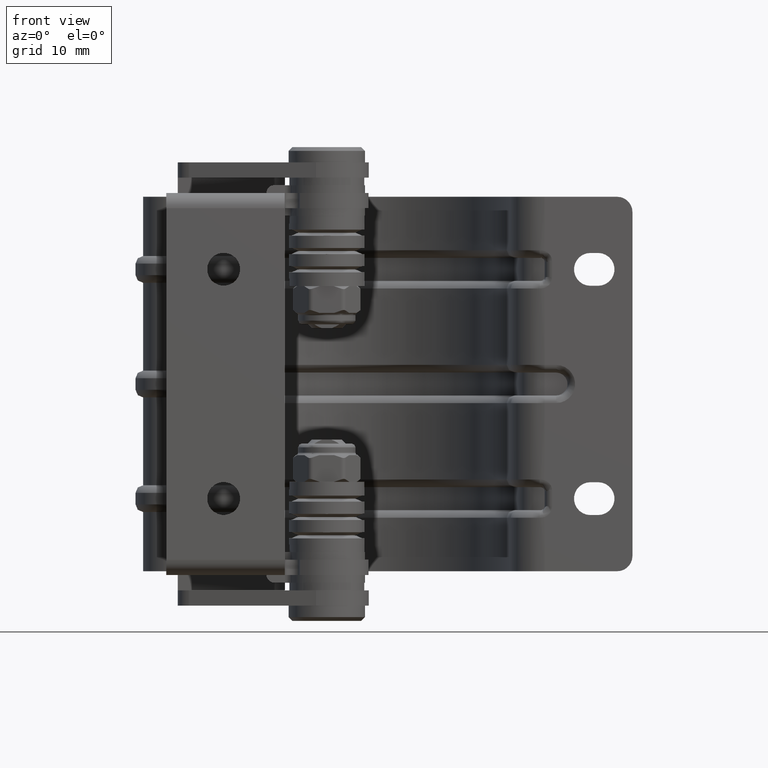
[diagram: clean part render]
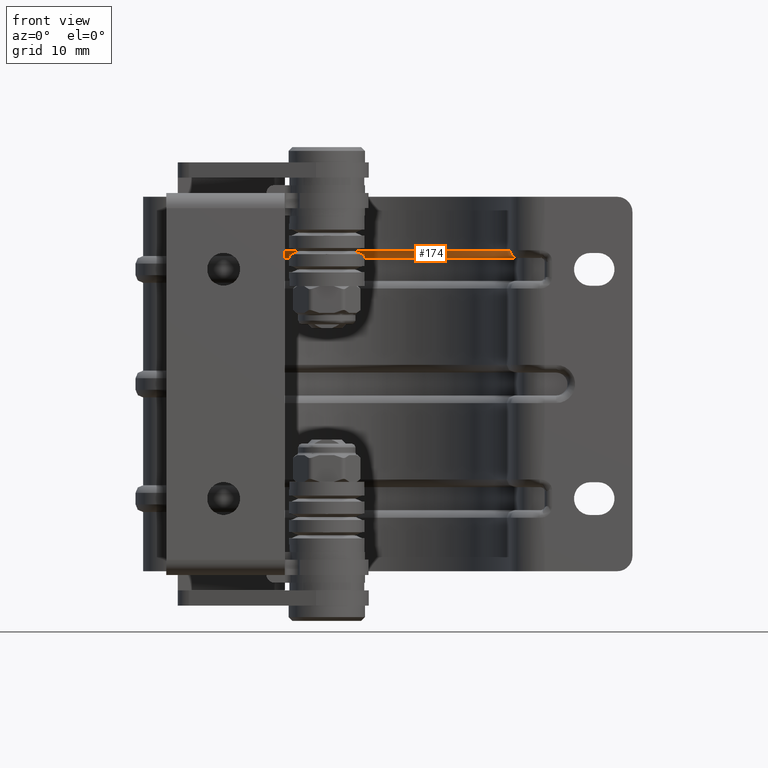
[diagram: same view with one face highlighted and labeled with its STEP entity id]
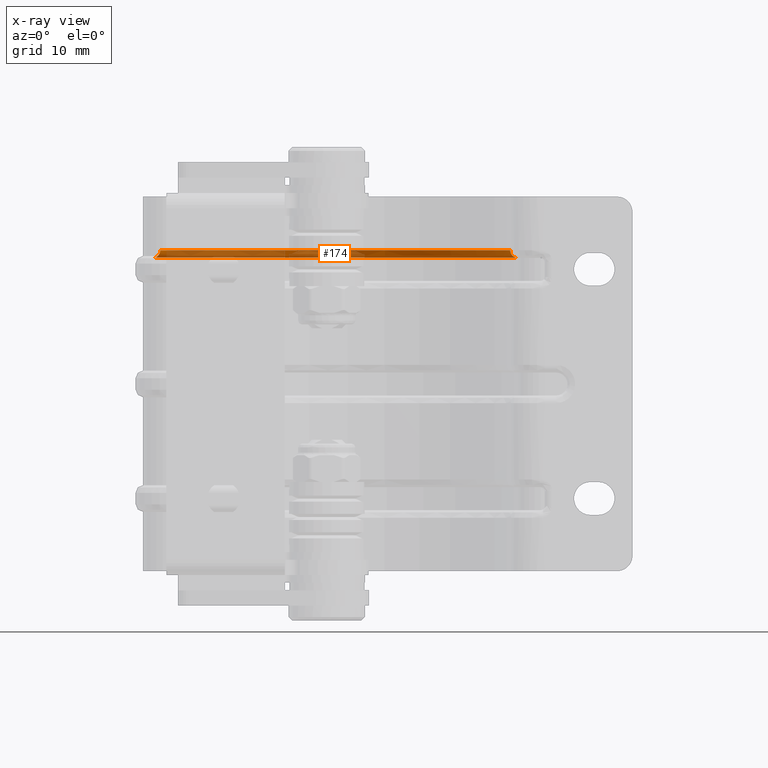
[diagram: x-ray of the same camera — body ghosted, the highlighted face saturated]
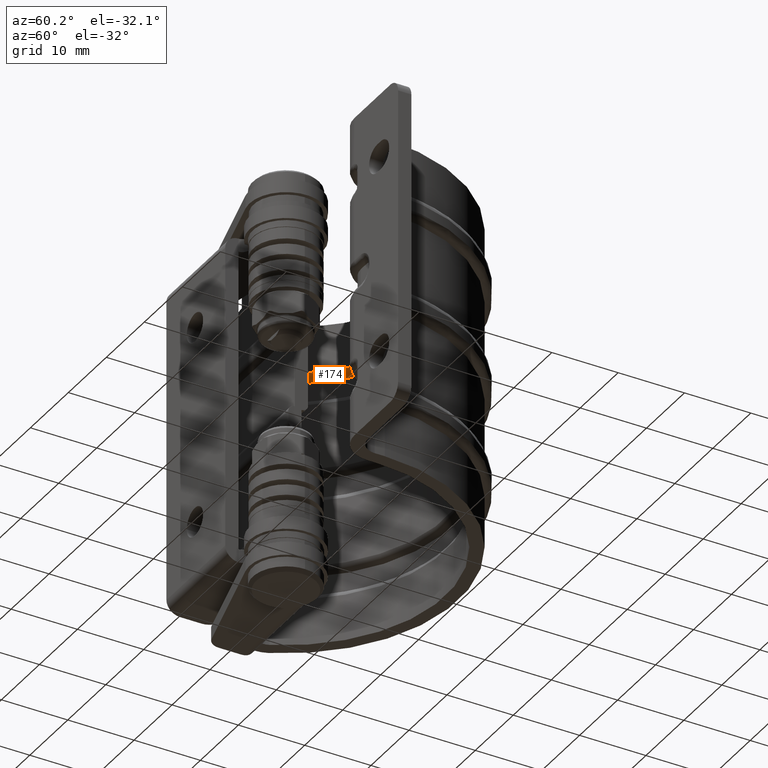
[diagram: same view with one face highlighted and labeled with its STEP entity id]
A machine part, front view. The second image highlights one B-rep face of the part: STEP entity #174.
The next image is the same camera in x-ray: the body ghosted, the highlighted face saturated — about 53% of this face is hidden behind the body in this view.
A second angle (auxiliary view) of the same face is appended — the face is thin or edge-on in the first view.
In plain terms, the highlighted face is a freeform B-spline surface patch.
Its self-contained STEP definition (entity closure, byte-faithful):
#174=ADVANCED_FACE('',(#1195),#1194,.T.);
#1194=( BOUNDED_SURFACE() B_SPLINE_SURFACE( 2,2,((#5483,#5484,#5485,#5486,#5487),(#5488,#5489,#5490,#5491,#5492),(#5493,#5494,#5495,#5496,#5497),(#5498,#5499,#5500,#5501,#5502),(#5503,#5504,#5505,#5506,#5507),(#5508,#5509,#5510,#5511,#5512),(#5513,#5514,#5515,#5516,#5517)), .UNSPECIFIED.,.T.,.F.,.F.) B_SPLINE_SURFACE_WITH_KNOTS((3,2,2,3),(3,2,3),(0.00000000000E+00,3.33333333333E-01,6.66666666667E-01,1.00000000000E+00),(0.00000000000E+00,5.00000000000E-01,1.00000000000E+00), .UNSPECIFIED. ) GEOMETRIC_REPRESENTATION_ITEM() RATIONAL_B_SPLINE_SURFACE(((1.00000000000E+00,7.07106781187E-01,1.00000000000E+00,7.07106781187E-01,1.00000000000E+00),(5.00000000000E-01,3.53553390593E-01,5.00000000000E-01,3.53553390593E-01,5.00000000000E-01),(1.00000000000E+00,7.07106781187E-01,1.00000000000E+00,7.07106781187E-01,1.00000000000E+00),(5.00000000000E-01,3.53553390593E-01,5.00000000000E-01,3.53553390593E-01,5.00000000000E-01),(1.00000000000E+00,7.07106781187E-01,1.00000000000E+00,7.07106781187E-01,1.00000000000E+00),(5.00000000000E-01,3.53553390593E-01,5.00000000000E-01,3.53553390593E-01,5.00000000000E-01),(1.00000000000E+00,7.07106781187E-01,1.00000000000E+00,7.07106781187E-01,1.00000000000E+00))) REPRESENTATION_ITEM('') SURFACE() );
#1195=FACE_OUTER_BOUND('',#5518,.T.);
#5483=CARTESIAN_POINT('',(-1.75000000000E+01,-7.34778372639E-15,-2.39999999984E+01));
#5484=CARTESIAN_POINT('',(-1.65000000000E+01,-7.34778372639E-15,-2.39999999984E+01));
#5485=CARTESIAN_POINT('',(-1.65000000000E+01,-7.47024436177E-15,-2.49999999984E+01));
#5486=CARTESIAN_POINT('',(-1.65000000000E+01,-7.59270499715E-15,-2.59999999984E+01));
#5487=CARTESIAN_POINT('',(-1.75000000000E+01,-7.59270499715E-15,-2.59999999984E+01));
#5488=CARTESIAN_POINT('',(-1.75000000000E+01,-4.15692193832E+01,-2.39999999984E+01));
#5489=CARTESIAN_POINT('',(-1.65000000000E+01,-4.15692193832E+01,-2.39999999984E+01));
#5490=CARTESIAN_POINT('',(-1.65000000000E+01,-4.33012701908E+01,-2.49999999984E+01));
#5491=CARTESIAN_POINT('',(-1.65000000000E+01,-4.50333209984E+01,-2.59999999984E+01));
#5492=CARTESIAN_POINT('',(-1.75000000000E+01,-4.50333209984E+01,-2.59999999984E+01));
#5493=CARTESIAN_POINT('',(-1.75000000000E+01,-2.07846096916E+01,1.20000000030E+01));
#5494=CARTESIAN_POINT('',(-1.65000000000E+01,-2.07846096916E+01,1.20000000030E+01));
#5495=CARTESIAN_POINT('',(-1.65000000000E+01,-2.16506350954E+01,1.25000000030E+01));
#5496=CARTESIAN_POINT('',(-1.65000000000E+01,-2.25166604992E+01,1.30000000030E+01));
#5497=CARTESIAN_POINT('',(-1.75000000000E+01,-2.25166604992E+01,1.30000000030E+01));
#5498=CARTESIAN_POINT('',(-1.75000000000E+01,-4.40872847710E-15,4.80000000044E+01));
#5499=CARTESIAN_POINT('',(-1.65000000000E+01,-4.40872847710E-15,4.80000000044E+01));
#5500=CARTESIAN_POINT('',(-1.65000000000E+01,-4.40872847710E-15,5.00000000044E+01));
#5501=CARTESIAN_POINT('',(-1.65000000000E+01,-4.40872847710E-15,5.20000000044E+01));
#5502=CARTESIAN_POINT('',(-1.75000000000E+01,-4.40872847710E-15,5.20000000044E+01));
#5503=CARTESIAN_POINT('',(-1.75000000000E+01,2.07846096916E+01,1.20000000030E+01));
#5504=CARTESIAN_POINT('',(-1.65000000000E+01,2.07846096916E+01,1.20000000030E+01));
#5505=CARTESIAN_POINT('',(-1.65000000000E+01,2.16506350954E+01,1.25000000030E+01));
#5506=CARTESIAN_POINT('',(-1.65000000000E+01,2.25166604992E+01,1.30000000030E+01));
#5507=CARTESIAN_POINT('',(-1.75000000000E+01,2.25166604992E+01,1.30000000030E+01));
#5508=CARTESIAN_POINT('',(-1.75000000000E+01,4.15692193832E+01,-2.39999999984E+01));
#5509=CARTESIAN_POINT('',(-1.65000000000E+01,4.15692193832E+01,-2.39999999984E+01));
#5510=CARTESIAN_POINT('',(-1.65000000000E+01,4.33012701908E+01,-2.49999999984E+01));
#5511=CARTESIAN_POINT('',(-1.65000000000E+01,4.50333209984E+01,-2.59999999984E+01));
#5512=CARTESIAN_POINT('',(-1.75000000000E+01,4.50333209984E+01,-2.59999999984E+01));
#5513=CARTESIAN_POINT('',(-1.75000000000E+01,-1.46967322781E-15,-2.39999999984E+01));
#5514=CARTESIAN_POINT('',(-1.65000000000E+01,-1.46967322781E-15,-2.39999999984E+01));
#5515=CARTESIAN_POINT('',(-1.65000000000E+01,-1.34721259243E-15,-2.49999999984E+01));
#5516=CARTESIAN_POINT('',(-1.65000000000E+01,-1.22475195705E-15,-2.59999999984E+01));
#5517=CARTESIAN_POINT('',(-1.75000000000E+01,-1.22475195705E-15,-2.59999999984E+01));
#5518=EDGE_LOOP('',(#9881,#9882,#9883,#9884));
#9881=ORIENTED_EDGE('',*,*,#11908,.T.);
#9882=ORIENTED_EDGE('',*,*,#11909,.T.);
#9883=ORIENTED_EDGE('',*,*,#11905,.F.);
#9884=ORIENTED_EDGE('',*,*,#11910,.F.);
#11905=EDGE_CURVE('',#13940,#13941,#13942,.T.);
#11908=EDGE_CURVE('',#13960,#13961,#13962,.T.);
#11909=EDGE_CURVE('',#13961,#13941,#13968,.T.);
#11910=EDGE_CURVE('',#13960,#13940,#13974,.T.);
#13940=VERTEX_POINT('',#20712);
#13941=VERTEX_POINT('',#20713);
#13942=CIRCLE('',#20717,1.00000000000E+00);
#13960=VERTEX_POINT('',#20724);
#13961=VERTEX_POINT('',#20725);
#13962=CIRCLE('',#20729,1.00000000000E+00);
#13968=CIRCLE('',#20733,2.50000000009E+01);
#13974=CIRCLE('',#20737,2.40000000009E+01);
#20712=CARTESIAN_POINT('',(-1.75000000000E+01,-5.87830463613E-15,-2.39999999984E+01));
#20713=CARTESIAN_POINT('',(-1.65000000000E+01,-1.11946807380E-09,-2.50000000007E+01));
#20714=CARTESIAN_POINT('',(-1.75000000000E+01,-5.93953697609E-15,-2.49999999984E+01));
#20715=DIRECTION('',(0.00000000000E+00,1.00000000000E+00,-6.12323399574E-17));
#20716=DIRECTION('',(-0.00000000000E+00,-6.12323399574E-17,-1.00000000000E+00));
#20717=AXIS2_PLACEMENT_3D('',#20714,#20715,#20716);
#20724=CARTESIAN_POINT('',(-1.75000000000E+01,-1.00465116282E+01,2.17960456106E+01));
#20725=CARTESIAN_POINT('',(-1.65000000000E+01,-1.04651162805E+01,2.27042141753E+01));
#20726=CARTESIAN_POINT('',(-1.75000000000E+01,-1.04651162794E+01,2.27042141776E+01));
#20727=DIRECTION('',(1.23094702313E-16,-9.08168566977E-01,-4.18604651139E-01));
#20728=DIRECTION('',(-0.00000000000E+00,-4.18604651139E-01,9.08168566977E-01));
#20729=AXIS2_PLACEMENT_3D('',#20726,#20727,#20728);
#20730=CARTESIAN_POINT('',(-1.65000000000E+01,-1.11946348137E-09,2.63700172809E-10));
#20731=DIRECTION('',(1.00000000000E+00,0.00000000000E+00,-0.00000000000E+00));
#20732=DIRECTION('',(-0.00000000000E+00,-0.00000000000E+00,-1.00000000000E+00));
#20733=AXIS2_PLACEMENT_3D('',#20730,#20731,#20732);
#20734=CARTESIAN_POINT('',(-1.75000000000E+01,-4.40872847710E-15,2.54019383306E-09));
#20735=DIRECTION('',(1.00000000000E+00,0.00000000000E+00,-0.00000000000E+00));
#20736=DIRECTION('',(-0.00000000000E+00,-0.00000000000E+00,-1.00000000000E+00));
#20737=AXIS2_PLACEMENT_3D('',#20734,#20735,#20736);